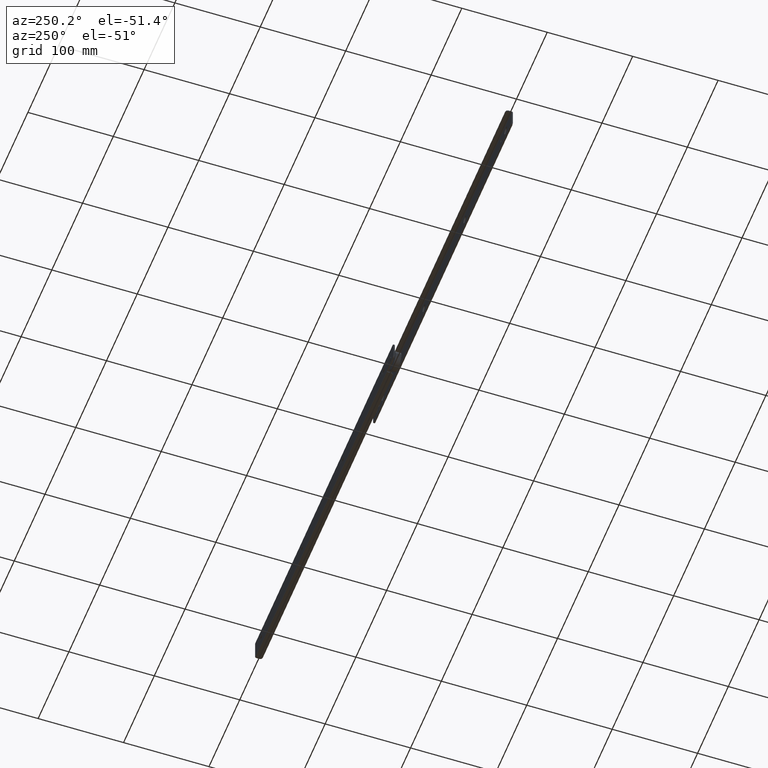
[diagram: clean part render]
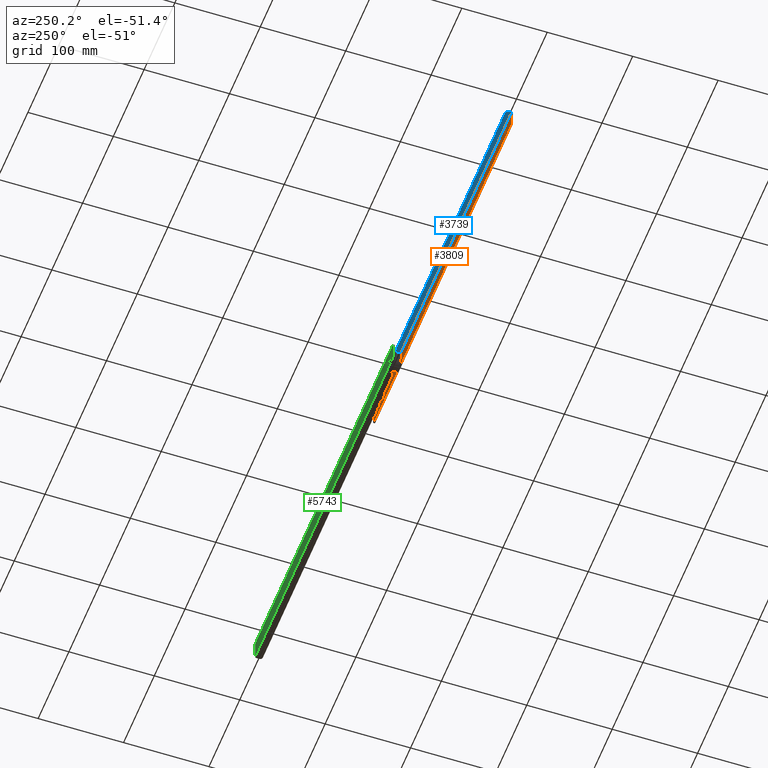
[diagram: same view with three faces highlighted in distinct colors, each labeled with its STEP entity id]
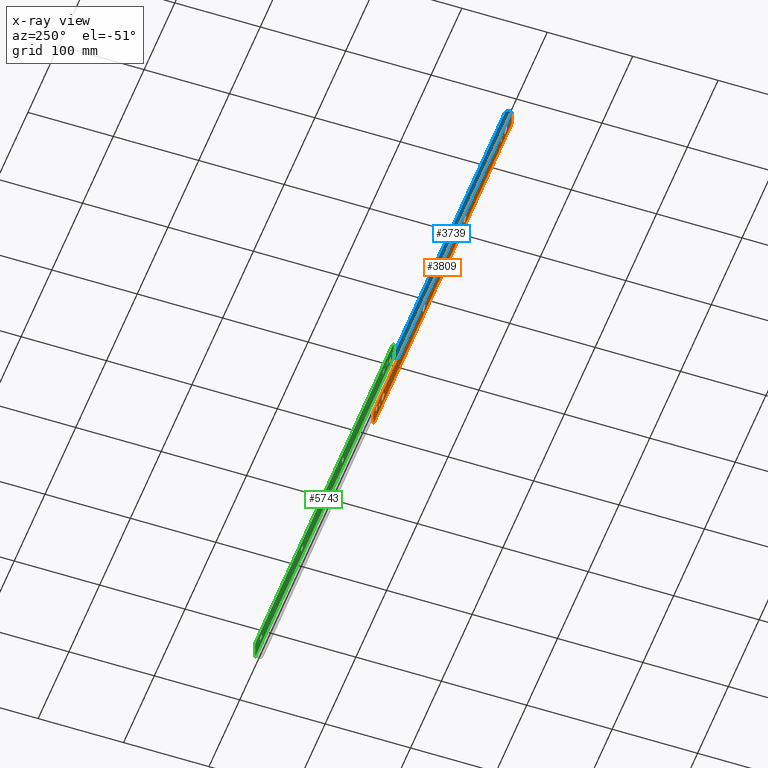
[diagram: x-ray of the same camera — body ghosted, the three highlighted faces saturated]
A machine part, auxiliary view with three faces highlighted in distinct colors.
The next image is the same camera in x-ray (body ghosted, the three faces saturated) — at least one of them is partly hidden behind the body in this view.
Their STEP definitions:

[orange] entity #3809 — the highlighted face is a freeform B-spline surface patch.
#1371=CARTESIAN_POINT('',(81.070621897568884,-10.400000000000000,-7.251799004887795));
#1372=VERTEX_POINT('',#1371);
#1373=CARTESIAN_POINT('',(84.0,-10.400000000000000,-10.549999999999800));
#1374=VERTEX_POINT('',#1373);
#1375=CARTESIAN_POINT('',(81.070621897568884,-10.400000000000002,-7.251799004887796));
#1376=CARTESIAN_POINT('',(81.050000000000011,-10.399999999999999,-7.425288844121709));
#1377=CARTESIAN_POINT('',(81.050000000000011,-10.400000000000000,-7.599999999999800));
#1378=CARTESIAN_POINT('',(81.050000000000011,-10.400000000000000,-10.549999999999802));
#1379=CARTESIAN_POINT('',(84.0,-10.400000000000000,-10.549999999999800));
#1387=(BOUNDED_CURVE()B_SPLINE_CURVE(2,(#1375,#1376,#1377,#1378,#1379),.UNSPECIFIED.,.F.,.U.)B_SPLINE_CURVE_WITH_KNOTS((3,2,3),(0.729562473183962,0.750000000000000,1.0),.UNSPECIFIED.)CURVE()GEOMETRIC_REPRESENTATION_ITEM()RATIONAL_B_SPLINE_CURVE((0.956026753537775,0.976055947945058,1.0,0.707106781186548,1.0))REPRESENTATION_ITEM(''));
#1388=EDGE_CURVE('',#1372,#1374,#1387,.T.);
#1429=CARTESIAN_POINT('',(86.944497645915249,-10.400000000000000,-7.780093345794604));
#1430=VERTEX_POINT('',#1429);
#1436=CARTESIAN_POINT('',(84.0,-10.400000000000000,-10.549999999999800));
#1437=CARTESIAN_POINT('',(86.775082606235145,-10.399999999999999,-10.549999999999800));
#1438=CARTESIAN_POINT('',(86.944497645915249,-10.400000000000000,-7.780093345794604));
#1446=(BOUNDED_CURVE()B_SPLINE_CURVE(2,(#1436,#1437,#1438),.UNSPECIFIED.,.F.,.U.)B_SPLINE_CURVE_WITH_KNOTS((3,3),(0.0,0.239332944173680),.UNSPECIFIED.)CURVE()GEOMETRIC_REPRESENTATION_ITEM()RATIONAL_B_SPLINE_CURVE((1.0,0.719604014451482,0.976072002949423))REPRESENTATION_ITEM(''));
#1447=EDGE_CURVE('',#1374,#1430,#1446,.T.);
#1470=CARTESIAN_POINT('',(84.0,-10.400000000000000,-4.649999999999801));
#1471=VERTEX_POINT('',#1470);
#1472=CARTESIAN_POINT('',(84.0,-10.400000000000000,-4.649999999999801));
#1473=CARTESIAN_POINT('',(81.379885153621856,-10.400000000000000,-4.649999999999800));
#1474=CARTESIAN_POINT('',(81.070621897568884,-10.400000000000002,-7.251799004887795));
#1482=(BOUNDED_CURVE()B_SPLINE_CURVE(2,(#1472,#1473,#1474),.UNSPECIFIED.,.F.,.U.)B_SPLINE_CURVE_WITH_KNOTS((3,3),(0.500000000000000,0.729562473183962),.UNSPECIFIED.)CURVE()GEOMETRIC_REPRESENTATION_ITEM()RATIONAL_B_SPLINE_CURVE((1.0,0.731050833241490,0.956026753537775))REPRESENTATION_ITEM(''));
#1483=EDGE_CURVE('',#1471,#1372,#1482,.T.);
#1485=CARTESIAN_POINT('',(86.944497645915249,-10.399999999999999,-7.780093345794604));
#1486=CARTESIAN_POINT('',(86.949999999999989,-10.400000000000002,-7.690130806329884));
#1487=CARTESIAN_POINT('',(86.950000000000003,-10.400000000000000,-7.599999999999800));
#1488=CARTESIAN_POINT('',(86.950000000000003,-10.400000000000000,-4.649999999999801));
#1489=CARTESIAN_POINT('',(84.0,-10.400000000000000,-4.649999999999801));
#1497=(BOUNDED_CURVE()B_SPLINE_CURVE(2,(#1485,#1486,#1487,#1488,#1489),.UNSPECIFIED.,.F.,.U.)B_SPLINE_CURVE_WITH_KNOTS((3,2,3),(0.239332944173680,0.250000000000000,0.500000000000000),.UNSPECIFIED.)CURVE()GEOMETRIC_REPRESENTATION_ITEM()RATIONAL_B_SPLINE_CURVE((0.976072002949423,0.987502766735065,1.0,0.707106781186548,1.0))REPRESENTATION_ITEM(''));
#1498=EDGE_CURVE('',#1430,#1471,#1497,.T.);
#1553=CARTESIAN_POINT('',(63.0,-10.400000000000000,-7.299999999999800));
#1554=VERTEX_POINT('',#1553);
#1555=CARTESIAN_POINT('',(58.713255462775038,-10.399999992469120,-11.262625837986890));
#1556=VERTEX_POINT('',#1555);
#1557=CARTESIAN_POINT('',(63.0,-10.400000000000000,-7.299999999999800));
#1558=CARTESIAN_POINT('',(59.025120978701047,-10.400000000000000,-7.299999999999800));
#1559=CARTESIAN_POINT('',(58.713255462775038,-10.399999992469120,-11.262625837986889));
#1567=(BOUNDED_CURVE()B_SPLINE_CURVE(2,(#1557,#1558,#1559),.UNSPECIFIED.,.F.,.U.)B_SPLINE_CURVE_WITH_KNOTS((3,3),(0.500000000000000,0.736331296641574),.UNSPECIFIED.)CURVE()GEOMETRIC_REPRESENTATION_ITEM()RATIONAL_B_SPLINE_CURVE((1.0,0.723120663281170,0.969723347842501))REPRESENTATION_ITEM(''));
#1568=EDGE_CURVE('',#1554,#1556,#1567,.T.);
#1570=CARTESIAN_POINT('',(67.286744537224962,-10.399999992469130,-11.937374162012709));
#1571=VERTEX_POINT('',#1570);
#1572=CARTESIAN_POINT('',(67.286744537224962,-10.399999992469121,-11.937374162012709));
#1573=CARTESIAN_POINT('',(67.299999999999997,-10.399999999999999,-11.768947510267459));
#1574=CARTESIAN_POINT('',(67.299999999999997,-10.400000000000000,-11.599999999999801));
#1575=CARTESIAN_POINT('',(67.299999999999997,-10.400000000000000,-7.299999999999800));
#1576=CARTESIAN_POINT('',(63.0,-10.400000000000000,-7.299999999999800));
#1584=(BOUNDED_CURVE()B_SPLINE_CURVE(2,(#1572,#1573,#1574,#1575,#1576),.UNSPECIFIED.,.F.,.U.)B_SPLINE_CURVE_WITH_KNOTS((3,2,3),(0.236331296641574,0.250000000000000,0.500000000000000),.UNSPECIFIED.)CURVE()GEOMETRIC_REPRESENTATION_ITEM()RATIONAL_B_SPLINE_CURVE((0.969723347842500,0.983986117905377,1.0,0.707106781186547,1.0))REPRESENTATION_ITEM(''));
#1585=EDGE_CURVE('',#1571,#1554,#1584,.T.);
#1652=CARTESIAN_POINT('',(63.0,-10.400000000000000,-15.899999999999800));
#1653=VERTEX_POINT('',#1652);
#1654=CARTESIAN_POINT('',(58.713255462775038,-10.399999992469123,-11.262625837986885));
#1655=CARTESIAN_POINT('',(58.700000000000003,-10.399999999999999,-11.431052489732137));
#1656=CARTESIAN_POINT('',(58.700000000000003,-10.400000000000000,-11.599999999999801));
#1657=CARTESIAN_POINT('',(58.700000000000003,-10.400000000000000,-15.899999999999794));
#1658=CARTESIAN_POINT('',(63.0,-10.400000000000000,-15.899999999999800));
#1666=(BOUNDED_CURVE()B_SPLINE_CURVE(2,(#1654,#1655,#1656,#1657,#1658),.UNSPECIFIED.,.F.,.U.)B_SPLINE_CURVE_WITH_KNOTS((3,2,3),(0.736331296641574,0.750000000000000,1.0),.UNSPECIFIED.)CURVE()GEOMETRIC_REPRESENTATION_ITEM()RATIONAL_B_SPLINE_CURVE((0.969723347842500,0.983986117905377,1.0,0.707106781186547,1.0))REPRESENTATION_ITEM(''));
#1667=EDGE_CURVE('',#1556,#1653,#1666,.T.);
#1701=CARTESIAN_POINT('',(63.0,-10.400000000000000,-15.899999999999800));
#1702=CARTESIAN_POINT('',(66.974879021298932,-10.400000000000000,-15.899999999999807));
#1703=CARTESIAN_POINT('',(67.286744537224962,-10.399999992469121,-11.937374162012709));
#1711=(BOUNDED_CURVE()B_SPLINE_CURVE(2,(#1701,#1702,#1703),.UNSPECIFIED.,.F.,.U.)B_SPLINE_CURVE_WITH_KNOTS((3,3),(0.0,0.236331296641574),.UNSPECIFIED.)CURVE()GEOMETRIC_REPRESENTATION_ITEM()RATIONAL_B_SPLINE_CURVE((1.0,0.723120663281170,0.969723347842500))REPRESENTATION_ITEM(''));
#1712=EDGE_CURVE('',#1653,#1571,#1711,.T.);
#1735=CARTESIAN_POINT('',(-70.0,-10.400000000000000,-7.299999999999800));
#1736=VERTEX_POINT('',#1735);
#1737=CARTESIAN_POINT('',(-74.286744537224962,-10.399999992469130,-11.262625837986890));
#1738=VERTEX_POINT('',#1737);
#1739=CARTESIAN_POINT('',(-70.0,-10.400000000000000,-7.299999999999800));
#1740=CARTESIAN_POINT('',(-73.974879021298975,-10.400000000000000,-7.299999999999800));
#1741=CARTESIAN_POINT('',(-74.286744537224962,-10.399999992469130,-11.262625837986889));
#1749=(BOUNDED_CURVE()B_SPLINE_CURVE(2,(#1739,#1740,#1741),.UNSPECIFIED.,.F.,.U.)B_SPLINE_CURVE_WITH_KNOTS((3,3),(0.500000000000000,0.736331296641574),.UNSPECIFIED.)CURVE()GEOMETRIC_REPRESENTATION_ITEM()RATIONAL_B_SPLINE_CURVE((1.0,0.723120663281170,0.969723347842501))REPRESENTATION_ITEM(''));
#1750=EDGE_CURVE('',#1736,#1738,#1749,.T.);
#1752=CARTESIAN_POINT('',(-65.713255462775038,-10.399999992469120,-11.937374162012709));
#1753=VERTEX_POINT('',#1752);
#1754=CARTESIAN_POINT('',(-65.713255462775038,-10.399999992469123,-11.937374162012711));
#1755=CARTESIAN_POINT('',(-65.700000000000003,-10.399999999999999,-11.768947510267461));
#1756=CARTESIAN_POINT('',(-65.700000000000003,-10.400000000000000,-11.599999999999801));
#1757=CARTESIAN_POINT('',(-65.700000000000003,-10.400000000000000,-7.299999999999800));
#1758=CARTESIAN_POINT('',(-70.0,-10.400000000000000,-7.299999999999800));
#1766=(BOUNDED_CURVE()B_SPLINE_CURVE(2,(#1754,#1755,#1756,#1757,#1758),.UNSPECIFIED.,.F.,.U.)B_SPLINE_CURVE_WITH_KNOTS((3,2,3),(0.236331296641574,0.250000000000000,0.500000000000000),.UNSPECIFIED.)CURVE()GEOMETRIC_REPRESENTATION_ITEM()RATIONAL_B_SPLINE_CURVE((0.969723347842500,0.983986117905377,1.0,0.707106781186547,1.0))REPRESENTATION_ITEM(''));
#1767=EDGE_CURVE('',#1753,#1736,#1766,.T.);
#1834=CARTESIAN_POINT('',(-70.0,-10.400000000000000,-15.899999999999800));
#1835=VERTEX_POINT('',#1834);
#1836=CARTESIAN_POINT('',(-74.286744537224962,-10.399999992469123,-11.262625837986885));
#1837=CARTESIAN_POINT('',(-74.300000000000011,-10.399999999999999,-11.431052489732137));
#1838=CARTESIAN_POINT('',(-74.300000000000011,-10.400000000000000,-11.599999999999801));
#1839=CARTESIAN_POINT('',(-74.300000000000011,-10.400000000000000,-15.899999999999794));
#1840=CARTESIAN_POINT('',(-70.0,-10.400000000000000,-15.899999999999800));
#1848=(BOUNDED_CURVE()B_SPLINE_CURVE(2,(#1836,#1837,#1838,#1839,#1840),.UNSPECIFIED.,.F.,.U.)B_SPLINE_CURVE_WITH_KNOTS((3,2,3),(0.736331296641574,0.750000000000000,1.0),.UNSPECIFIED.)CURVE()GEOMETRIC_REPRESENTATION_ITEM()RATIONAL_B_SPLINE_CURVE((0.969723347842500,0.983986117905377,1.0,0.707106781186547,1.0))REPRESENTATION_ITEM(''));
#1849=EDGE_CURVE('',#1738,#1835,#1848,.T.);
#1883=CARTESIAN_POINT('',(-70.0,-10.400000000000000,-15.899999999999800));
#1884=CARTESIAN_POINT('',(-66.025120978701054,-10.400000000000000,-15.899999999999805));
#1885=CARTESIAN_POINT('',(-65.713255462775038,-10.399999992469123,-11.937374162012711));
#1893=(BOUNDED_CURVE()B_SPLINE_CURVE(2,(#1883,#1884,#1885),.UNSPECIFIED.,.F.,.U.)B_SPLINE_CURVE_WITH_KNOTS((3,3),(0.0,0.236331296641574),.UNSPECIFIED.)CURVE()GEOMETRIC_REPRESENTATION_ITEM()RATIONAL_B_SPLINE_CURVE((1.0,0.723120663281171,0.969723347842500))REPRESENTATION_ITEM(''));
#1894=EDGE_CURVE('',#1835,#1753,#1893,.T.);
#1917=CARTESIAN_POINT('',(-203.0,-10.400000000000000,-7.299999999999800));
#1918=VERTEX_POINT('',#1917);
#1919=CARTESIAN_POINT('',(-207.286744537224990,-10.399999992469120,-11.262625837986890));
#1920=VERTEX_POINT('',#1919);
#1921=CARTESIAN_POINT('',(-203.0,-10.400000000000000,-7.299999999999800));
#1922=CARTESIAN_POINT('',(-206.974879021298990,-10.400000000000000,-7.299999999999800));
#1923=CARTESIAN_POINT('',(-207.286744537224990,-10.399999992469120,-11.262625837986889));
#1931=(BOUNDED_CURVE()B_SPLINE_CURVE(2,(#1921,#1922,#1923),.UNSPECIFIED.,.F.,.U.)B_SPLINE_CURVE_WITH_KNOTS((3,3),(0.500000000000000,0.736331296641574),.UNSPECIFIED.)CURVE()GEOMETRIC_REPRESENTATION_ITEM()RATIONAL_B_SPLINE_CURVE((1.0,0.723120663281170,0.969723347842501))REPRESENTATION_ITEM(''));
#1932=EDGE_CURVE('',#1918,#1920,#1931,.T.);
#1934=CARTESIAN_POINT('',(-198.713255462775010,-10.399999992469130,-11.937374162012709));
#1935=VERTEX_POINT('',#1934);
#1936=CARTESIAN_POINT('',(-198.713255462775040,-10.399999992469132,-11.937374162012709));
#1937=CARTESIAN_POINT('',(-198.699999999999990,-10.399999999999999,-11.768947510267459));
#1938=CARTESIAN_POINT('',(-198.699999999999990,-10.400000000000000,-11.599999999999801));
#1939=CARTESIAN_POINT('',(-198.700000000000020,-10.400000000000000,-7.299999999999800));
#1940=CARTESIAN_POINT('',(-203.0,-10.400000000000000,-7.299999999999800));
#1948=(BOUNDED_CURVE()B_SPLINE_CURVE(2,(#1936,#1937,#1938,#1939,#1940),.UNSPECIFIED.,.F.,.U.)B_SPLINE_CURVE_WITH_KNOTS((3,2,3),(0.236331296641574,0.250000000000000,0.500000000000000),.UNSPECIFIED.)CURVE()GEOMETRIC_REPRESENTATION_ITEM()RATIONAL_B_SPLINE_CURVE((0.969723347842500,0.983986117905377,1.0,0.707106781186547,1.0))REPRESENTATION_ITEM(''));
#1949=EDGE_CURVE('',#1935,#1918,#1948,.T.);
#2016=CARTESIAN_POINT('',(-203.0,-10.400000000000000,-15.899999999999800));
#2017=VERTEX_POINT('',#2016);
#2018=CARTESIAN_POINT('',(-207.286744537225080,-10.399999992469118,-11.262625837986889));
#2019=CARTESIAN_POINT('',(-207.300000000000100,-10.400000000000000,-11.431052489732139));
#2020=CARTESIAN_POINT('',(-207.300000000000010,-10.400000000000000,-11.599999999999801));
#2021=CARTESIAN_POINT('',(-207.299999999999980,-10.400000000000000,-15.899999999999794));
#2022=CARTESIAN_POINT('',(-203.0,-10.400000000000000,-15.899999999999800));
#2030=(BOUNDED_CURVE()B_SPLINE_CURVE(2,(#2018,#2019,#2020,#2021,#2022),.UNSPECIFIED.,.F.,.U.)B_SPLINE_CURVE_WITH_KNOTS((3,2,3),(0.736331296641573,0.750000000000000,1.0),.UNSPECIFIED.)CURVE()GEOMETRIC_REPRESENTATION_ITEM()RATIONAL_B_SPLINE_CURVE((0.969723347842499,0.983986117905377,1.0,0.707106781186547,1.0))REPRESENTATION_ITEM(''));
#2031=EDGE_CURVE('',#1920,#2017,#2030,.T.);
#2065=CARTESIAN_POINT('',(-203.0,-10.400000000000000,-15.899999999999800));
#2066=CARTESIAN_POINT('',(-199.025120978701070,-10.400000000000000,-15.899999999999807));
#2067=CARTESIAN_POINT('',(-198.713255462775040,-10.399999992469132,-11.937374162012709));
#2075=(BOUNDED_CURVE()B_SPLINE_CURVE(2,(#2065,#2066,#2067),.UNSPECIFIED.,.F.,.U.)B_SPLINE_CURVE_WITH_KNOTS((3,3),(0.0,0.236331296641574),.UNSPECIFIED.)CURVE()GEOMETRIC_REPRESENTATION_ITEM()RATIONAL_B_SPLINE_CURVE((1.0,0.723120663281170,0.969723347842500))REPRESENTATION_ITEM(''));
#2076=EDGE_CURVE('',#2017,#1935,#2075,.T.);
#2099=CARTESIAN_POINT('',(-336.0,-10.400000000000000,-7.299999999999800));
#2100=VERTEX_POINT('',#2099);
#2101=CARTESIAN_POINT('',(-340.286744537224990,-10.399999992469100,-11.262625837986890));
#2102=VERTEX_POINT('',#2101);
#2103=CARTESIAN_POINT('',(-336.0,-10.400000000000000,-7.299999999999800));
#2104=CARTESIAN_POINT('',(-339.974879021299050,-10.400000000000000,-7.299999999999800));
#2105=CARTESIAN_POINT('',(-340.286744537224990,-10.399999992469100,-11.262625837986889));
#2113=(BOUNDED_CURVE()B_SPLINE_CURVE(2,(#2103,#2104,#2105),.UNSPECIFIED.,.F.,.U.)B_SPLINE_CURVE_WITH_KNOTS((3,3),(0.500000000000000,0.736331296641574),.UNSPECIFIED.)CURVE()GEOMETRIC_REPRESENTATION_ITEM()RATIONAL_B_SPLINE_CURVE((1.0,0.723120663281170,0.969723347842501))REPRESENTATION_ITEM(''));
#2114=EDGE_CURVE('',#2100,#2102,#2113,.T.);
#2116=CARTESIAN_POINT('',(-331.713255462775120,-10.399999992469130,-11.937374162012709));
#2117=VERTEX_POINT('',#2116);
#2118=CARTESIAN_POINT('',(-331.713255462775070,-10.399999992469132,-11.937374162012709));
#2119=CARTESIAN_POINT('',(-331.699999999999930,-10.399999999999999,-11.768947510267459));
#2120=CARTESIAN_POINT('',(-331.699999999999990,-10.400000000000000,-11.599999999999801));
#2121=CARTESIAN_POINT('',(-331.700000000000050,-10.400000000000000,-7.299999999999800));
#2122=CARTESIAN_POINT('',(-336.0,-10.400000000000000,-7.299999999999800));
#2130=(BOUNDED_CURVE()B_SPLINE_CURVE(2,(#2118,#2119,#2120,#2121,#2122),.UNSPECIFIED.,.F.,.U.)B_SPLINE_CURVE_WITH_KNOTS((3,2,3),(0.236331296641574,0.250000000000000,0.500000000000000),.UNSPECIFIED.)CURVE()GEOMETRIC_REPRESENTATION_ITEM()RATIONAL_B_SPLINE_CURVE((0.969723347842500,0.983986117905377,1.0,0.707106781186547,1.0))REPRESENTATION_ITEM(''));
#2131=EDGE_CURVE('',#2117,#2100,#2130,.T.);
#2198=CARTESIAN_POINT('',(-336.0,-10.400000000000000,-15.899999999999800));
#2199=VERTEX_POINT('',#2198);
#2200=CARTESIAN_POINT('',(-340.286744537224990,-10.399999992469100,-11.262625837986890));
#2201=CARTESIAN_POINT('',(-340.300000000000070,-10.400000000000002,-11.431052489732132));
#2202=CARTESIAN_POINT('',(-340.300000000000130,-10.400000000000000,-11.599999999999801));
#2203=CARTESIAN_POINT('',(-340.300000000000180,-10.400000000000000,-15.899999999999794));
#2204=CARTESIAN_POINT('',(-336.0,-10.400000000000000,-15.899999999999800));
#2212=(BOUNDED_CURVE()B_SPLINE_CURVE(2,(#2200,#2201,#2202,#2203,#2204),.UNSPECIFIED.,.F.,.U.)B_SPLINE_CURVE_WITH_KNOTS((3,2,3),(0.736331296641573,0.750000000000000,1.0),.UNSPECIFIED.)CURVE()GEOMETRIC_REPRESENTATION_ITEM()RATIONAL_B_SPLINE_CURVE((0.969723347842499,0.983986117905377,1.0,0.707106781186547,1.0))REPRESENTATION_ITEM(''));
#2213=EDGE_CURVE('',#2102,#2199,#2212,.T.);
#2247=CARTESIAN_POINT('',(-336.0,-10.400000000000000,-15.899999999999800));
#2248=CARTESIAN_POINT('',(-332.025120978701070,-10.400000000000000,-15.899999999999807));
#2249=CARTESIAN_POINT('',(-331.713255462775070,-10.399999992469132,-11.937374162012709));
#2257=(BOUNDED_CURVE()B_SPLINE_CURVE(2,(#2247,#2248,#2249),.UNSPECIFIED.,.F.,.U.)B_SPLINE_CURVE_WITH_KNOTS((3,3),(0.0,0.236331296641574),.UNSPECIFIED.)CURVE()GEOMETRIC_REPRESENTATION_ITEM()RATIONAL_B_SPLINE_CURVE((1.0,0.723120663281170,0.969723347842500))REPRESENTATION_ITEM(''));
#2258=EDGE_CURVE('',#2199,#2117,#2257,.T.);
#2285=CARTESIAN_POINT('',(73.013980951174005,-10.400000000000000,-11.363931497864611));
#2286=VERTEX_POINT('',#2285);
#2287=CARTESIAN_POINT('',(75.0,-10.400000000000000,-13.599999999999801));
#2288=VERTEX_POINT('',#2287);
#2289=CARTESIAN_POINT('',(73.013980951174005,-10.400000000000000,-11.363931497864613));
#2290=CARTESIAN_POINT('',(73.0,-10.399999999999995,-11.481551727527320));
#2291=CARTESIAN_POINT('',(73.0,-10.400000000000000,-11.599999999999801));
#2292=CARTESIAN_POINT('',(72.999999999999986,-10.400000000000000,-13.599999999999799));
#2293=CARTESIAN_POINT('',(75.0,-10.400000000000000,-13.599999999999801));
#2301=(BOUNDED_CURVE()B_SPLINE_CURVE(2,(#2289,#2290,#2291,#2292,#2293),.UNSPECIFIED.,.F.,.U.)B_SPLINE_CURVE_WITH_KNOTS((3,2,3),(0.729562467929627,0.750000000000000,1.0),.UNSPECIFIED.)CURVE()GEOMETRIC_REPRESENTATION_ITEM()RATIONAL_B_SPLINE_CURVE((0.956026743239063,0.976055941789221,1.0,0.707106781186548,1.0))REPRESENTATION_ITEM(''));
#2302=EDGE_CURVE('',#2286,#2288,#2301,.T.);
#2343=CARTESIAN_POINT('',(76.996269595957983,-10.400000000000000,-11.722097093551319));
#2344=VERTEX_POINT('',#2343);
#2350=CARTESIAN_POINT('',(75.0,-10.400000000000000,-13.599999999999801));
#2351=CARTESIAN_POINT('',(76.881412106463230,-10.400000000000000,-13.599999999999797));
#2352=CARTESIAN_POINT('',(76.996269595957983,-10.400000000000002,-11.722097093551325));
#2360=(BOUNDED_CURVE()B_SPLINE_CURVE(2,(#2350,#2351,#2352),.UNSPECIFIED.,.F.,.U.)B_SPLINE_CURVE_WITH_KNOTS((3,3),(0.0,0.239332959738510),.UNSPECIFIED.)CURVE()GEOMETRIC_REPRESENTATION_ITEM()RATIONAL_B_SPLINE_CURVE((1.0,0.719603996216150,0.976072036307813))REPRESENTATION_ITEM(''));
#2361=EDGE_CURVE('',#2288,#2344,#2360,.T.);
#2384=CARTESIAN_POINT('',(75.0,-10.400000000000000,-9.599999999999799));
#2385=VERTEX_POINT('',#2384);
#2386=CARTESIAN_POINT('',(75.0,-10.400000000000000,-9.599999999999799));
#2387=CARTESIAN_POINT('',(73.223651007223751,-10.400000000000000,-9.599999999999799));
#2388=CARTESIAN_POINT('',(73.013980951174005,-10.400000000000000,-11.363931497864609));
#2396=(BOUNDED_CURVE()B_SPLINE_CURVE(2,(#2386,#2387,#2388),.UNSPECIFIED.,.F.,.U.)B_SPLINE_CURVE_WITH_KNOTS((3,3),(0.500000000000000,0.729562467929627),.UNSPECIFIED.)CURVE()GEOMETRIC_REPRESENTATION_ITEM()RATIONAL_B_SPLINE_CURVE((1.0,0.731050839397326,0.956026743239064))REPRESENTATION_ITEM(''));
#2397=EDGE_CURVE('',#2385,#2286,#2396,.T.);
#2399=CARTESIAN_POINT('',(76.996269595957983,-10.400000000000004,-11.722097093551316));
#2400=CARTESIAN_POINT('',(77.0,-10.399999999999997,-11.661105541119388));
#2401=CARTESIAN_POINT('',(77.0,-10.400000000000000,-11.599999999999801));
#2402=CARTESIAN_POINT('',(77.000000000000014,-10.400000000000000,-9.599999999999799));
#2403=CARTESIAN_POINT('',(75.0,-10.400000000000000,-9.599999999999799));
#2411=(BOUNDED_CURVE()B_SPLINE_CURVE(2,(#2399,#2400,#2401,#2402,#2403),.UNSPECIFIED.,.F.,.U.)B_SPLINE_CURVE_WITH_KNOTS((3,2,3),(0.239332959738509,0.250000000000000,0.500000000000000),.UNSPECIFIED.)CURVE()GEOMETRIC_REPRESENTATION_ITEM()RATIONAL_B_SPLINE_CURVE((0.976072036307813,0.987502784970397,1.0,0.707106781186548,1.0))REPRESENTATION_ITEM(''));
#2412=EDGE_CURVE('',#2344,#2385,#2411,.T.);
#2471=CARTESIAN_POINT('',(-322.986019048825880,-10.400000000000000,-11.363931497864611));
#2472=VERTEX_POINT('',#2471);
#2473=CARTESIAN_POINT('',(-321.0,-10.400000000000000,-13.599999999999801));
#2474=VERTEX_POINT('',#2473);
#2475=CARTESIAN_POINT('',(-322.986019048825940,-10.400000000000000,-11.363931497864607));
#2476=CARTESIAN_POINT('',(-323.000000000000060,-10.399999999999999,-11.481551727527322));
#2477=CARTESIAN_POINT('',(-323.0,-10.400000000000000,-11.599999999999801));
#2478=CARTESIAN_POINT('',(-323.000000000000060,-10.400000000000000,-13.599999999999799));
#2479=CARTESIAN_POINT('',(-321.0,-10.400000000000000,-13.599999999999801));
#2487=(BOUNDED_CURVE()B_SPLINE_CURVE(2,(#2475,#2476,#2477,#2478,#2479),.UNSPECIFIED.,.F.,.U.)B_SPLINE_CURVE_WITH_KNOTS((3,2,3),(0.729562467929626,0.750000000000000,1.0),.UNSPECIFIED.)CURVE()GEOMETRIC_REPRESENTATION_ITEM()RATIONAL_B_SPLINE_CURVE((0.956026743239062,0.976055941789220,1.0,0.707106781186548,1.0))REPRESENTATION_ITEM(''));
#2488=EDGE_CURVE('',#2472,#2474,#2487,.T.);
#2529=CARTESIAN_POINT('',(-319.003730404042020,-10.400000000000000,-11.722097093551319));
#2530=VERTEX_POINT('',#2529);
#2536=CARTESIAN_POINT('',(-321.0,-10.400000000000000,-13.599999999999801));
#2537=CARTESIAN_POINT('',(-319.118587893536760,-10.400000000000000,-13.599999999999801));
#2538=CARTESIAN_POINT('',(-319.003730404042020,-10.400000000000004,-11.722097093551316));
#2546=(BOUNDED_CURVE()B_SPLINE_CURVE(2,(#2536,#2537,#2538),.UNSPECIFIED.,.F.,.U.)B_SPLINE_CURVE_WITH_KNOTS((3,3),(0.0,0.239332959738509),.UNSPECIFIED.)CURVE()GEOMETRIC_REPRESENTATION_ITEM()RATIONAL_B_SPLINE_CURVE((1.0,0.719603996216150,0.976072036307813))REPRESENTATION_ITEM(''));
#2547=EDGE_CURVE('',#2474,#2530,#2546,.T.);
#2570=CARTESIAN_POINT('',(-321.0,-10.400000000000000,-9.599999999999799));
#2571=VERTEX_POINT('',#2570);
#2572=CARTESIAN_POINT('',(-321.0,-10.400000000000000,-9.599999999999799));
#2573=CARTESIAN_POINT('',(-322.776348992776210,-10.400000000000000,-9.599999999999799));
#2574=CARTESIAN_POINT('',(-322.986019048825880,-10.400000000000000,-11.363931497864609));
#2582=(BOUNDED_CURVE()B_SPLINE_CURVE(2,(#2572,#2573,#2574),.UNSPECIFIED.,.F.,.U.)B_SPLINE_CURVE_WITH_KNOTS((3,3),(0.500000000000000,0.729562467929627),.UNSPECIFIED.)CURVE()GEOMETRIC_REPRESENTATION_ITEM()RATIONAL_B_SPLINE_CURVE((1.0,0.731050839397326,0.956026743239064))REPRESENTATION_ITEM(''));
#2583=EDGE_CURVE('',#2571,#2472,#2582,.T.);
#2585=CARTESIAN_POINT('',(-319.003730404042020,-10.399999999999997,-11.722097093551321));
#2586=CARTESIAN_POINT('',(-319.0,-10.399999999999999,-11.661105541119392));
#2587=CARTESIAN_POINT('',(-319.0,-10.400000000000000,-11.599999999999801));
#2588=CARTESIAN_POINT('',(-319.0,-10.400000000000000,-9.599999999999799));
#2589=CARTESIAN_POINT('',(-321.0,-10.400000000000000,-9.599999999999799));
#2597=(BOUNDED_CURVE()B_SPLINE_CURVE(2,(#2585,#2586,#2587,#2588,#2589),.UNSPECIFIED.,.F.,.U.)B_SPLINE_CURVE_WITH_KNOTS((3,2,3),(0.239332959738509,0.250000000000000,0.500000000000000),.UNSPECIFIED.)CURVE()GEOMETRIC_REPRESENTATION_ITEM()RATIONAL_B_SPLINE_CURVE((0.976072036307813,0.987502784970397,1.0,0.707106781186548,1.0))REPRESENTATION_ITEM(''));
#2598=EDGE_CURVE('',#2530,#2571,#2597,.T.);
#3052=CARTESIAN_POINT('',(28.0,-10.400000000000000,-1.999999999999800));
#3053=VERTEX_POINT('',#3052);
#3054=CARTESIAN_POINT('',(14.0,-10.400000000000000,-1.999999999999800));
#3055=VERTEX_POINT('',#3054);
#3056=CARTESIAN_POINT('',(28.0,-10.400000000000000,-1.999999999999800));
#3057=CARTESIAN_POINT('',(14.0,-10.400000000000000,-1.999999999999800));
#3058=QUASI_UNIFORM_CURVE('',1,(#3056,#3057),.UNSPECIFIED.,.F.,.U.);
#3059=EDGE_CURVE('',#3053,#3055,#3058,.T.);
#3114=CARTESIAN_POINT('',(92.0,-10.400000000000000,-21.600000000000001));
#3115=VERTEX_POINT('',#3114);
#3121=CARTESIAN_POINT('',(95.0,-10.400000000000000,-18.600000000000001));
#3122=VERTEX_POINT('',#3121);
#3123=CARTESIAN_POINT('',(95.0,-10.400000000000000,-18.600000000000001));
#3124=CARTESIAN_POINT('',(95.000000000000014,-10.400000000000000,-21.600000000000005));
#3125=CARTESIAN_POINT('',(92.0,-10.400000000000000,-21.600000000000001));
#3133=(BOUNDED_CURVE()B_SPLINE_CURVE(2,(#3123,#3124,#3125),.UNSPECIFIED.,.F.,.U.)CURVE()GEOMETRIC_REPRESENTATION_ITEM()QUASI_UNIFORM_CURVE()RATIONAL_B_SPLINE_CURVE((1.0,0.707106781186548,1.0))REPRESENTATION_ITEM(''));
#3134=EDGE_CURVE('',#3122,#3115,#3133,.T.);
#3158=CARTESIAN_POINT('',(92.0,-10.400000000000000,-1.599999999999795));
#3159=VERTEX_POINT('',#3158);
#3160=CARTESIAN_POINT('',(95.0,-10.400000000000000,-4.599999999999800));
#3161=VERTEX_POINT('',#3160);
#3162=CARTESIAN_POINT('',(92.0,-10.400000000000000,-1.599999999999800));
#3163=CARTESIAN_POINT('',(95.000000000000014,-10.400000000000000,-1.599999999999799));
#3164=CARTESIAN_POINT('',(95.0,-10.400000000000000,-4.599999999999800));
#3172=(BOUNDED_CURVE()B_SPLINE_CURVE(2,(#3162,#3163,#3164),.UNSPECIFIED.,.F.,.U.)CURVE()GEOMETRIC_REPRESENTATION_ITEM()QUASI_UNIFORM_CURVE()RATIONAL_B_SPLINE_CURVE((1.0,0.707106781186548,1.0))REPRESENTATION_ITEM(''));
#3173=EDGE_CURVE('',#3159,#3161,#3172,.T.);
#3358=CARTESIAN_POINT('',(-355.0,-10.400000000000000,-18.600000000000001));
#3359=VERTEX_POINT('',#3358);
#3365=CARTESIAN_POINT('',(-352.0,-10.400000000000000,-21.600000000000001));
#3366=VERTEX_POINT('',#3365);
#3367=CARTESIAN_POINT('',(-352.0,-10.400000000000000,-21.600000000000001));
#3368=CARTESIAN_POINT('',(-355.000000000000060,-10.400000000000000,-21.600000000000005));
#3369=CARTESIAN_POINT('',(-355.0,-10.400000000000000,-18.600000000000001));
#3377=(BOUNDED_CURVE()B_SPLINE_CURVE(2,(#3367,#3368,#3369),.UNSPECIFIED.,.F.,.U.)CURVE()GEOMETRIC_REPRESENTATION_ITEM()QUASI_UNIFORM_CURVE()RATIONAL_B_SPLINE_CURVE((1.0,0.707106781186548,1.0))REPRESENTATION_ITEM(''));
#3378=EDGE_CURVE('',#3366,#3359,#3377,.T.);
#3401=CARTESIAN_POINT('',(73.0,-10.400000000000000,-1.599999999999795));
#3402=VERTEX_POINT('',#3401);
#3403=CARTESIAN_POINT('',(92.0,-10.400000000000000,-1.599999999999795));
#3404=CARTESIAN_POINT('',(73.0,-10.400000000000000,-1.599999999999795));
#3405=QUASI_UNIFORM_CURVE('',1,(#3403,#3404),.UNSPECIFIED.,.F.,.U.);
#3406=EDGE_CURVE('',#3159,#3402,#3405,.T.);
#3456=CARTESIAN_POINT('',(-355.0,-10.400000000000000,-1.599999999999795));
#3457=VERTEX_POINT('',#3456);
#3458=CARTESIAN_POINT('',(-355.0,-10.400000000000000,-18.600000000000001));
#3459=CARTESIAN_POINT('',(-355.0,-10.400000000000000,-1.599999999999795));
#3460=QUASI_UNIFORM_CURVE('',1,(#3458,#3459),.UNSPECIFIED.,.F.,.U.);
#3461=EDGE_CURVE('',#3359,#3457,#3460,.T.);
#3505=CARTESIAN_POINT('',(95.0,-10.400000000000000,-18.600000000000001));
#3506=CARTESIAN_POINT('',(95.0,-10.400000000000000,-4.599999999999800));
#3507=QUASI_UNIFORM_CURVE('',1,(#3505,#3506),.UNSPECIFIED.,.F.,.U.);
#3508=EDGE_CURVE('',#3122,#3161,#3507,.T.);
#3525=CARTESIAN_POINT('',(92.0,-10.400000000000000,-21.600000000000001));
#3526=CARTESIAN_POINT('',(-352.0,-10.400000000000000,-21.600000000000001));
#3527=QUASI_UNIFORM_CURVE('',1,(#3525,#3526),.UNSPECIFIED.,.F.,.U.);
#3528=EDGE_CURVE('',#3115,#3366,#3527,.T.);
#3701=CARTESIAN_POINT('',(28.0,-10.400000000000000,-1.599999999999795));
#3702=VERTEX_POINT('',#3701);
#3703=CARTESIAN_POINT('',(73.0,-10.400000000000000,-1.599999999999795));
#3704=CARTESIAN_POINT('',(28.0,-10.400000000000000,-1.599999999999795));
#3705=QUASI_UNIFORM_CURVE('',1,(#3703,#3704),.UNSPECIFIED.,.F.,.U.);
#3706=EDGE_CURVE('',#3402,#3702,#3705,.T.);
#3721=CARTESIAN_POINT('',(14.0,-10.400000000000000,-1.599999999999795));
#3722=VERTEX_POINT('',#3721);
#3728=CARTESIAN_POINT('',(14.0,-10.400000000000000,-1.599999999999795));
#3729=CARTESIAN_POINT('',(-355.0,-10.400000000000000,-1.599999999999795));
#3730=QUASI_UNIFORM_CURVE('',1,(#3728,#3729),.UNSPECIFIED.,.F.,.U.);
#3731=EDGE_CURVE('',#3722,#3457,#3730,.T.);
#3740=CARTESIAN_POINT('',(-377.477499127812680,-10.400000000000000,-0.601000038763665));
#3741=CARTESIAN_POINT('',(-377.477499127812680,-10.400000000000000,-22.599000497677942));
#3742=CARTESIAN_POINT('',(117.477511197753200,-10.400000000000000,-0.601000038763665));
#3743=CARTESIAN_POINT('',(117.477511197753200,-10.400000000000000,-22.599000497677942));
#3744=B_SPLINE_SURFACE_WITH_KNOTS('',1,1,((#3740,#3742),(#3741,#3743)),.UNSPECIFIED.,.F.,.F.,.U.,(2,2),(2,2),(0.0,21.998000458914269),(0.0,494.955010325565920),.UNSPECIFIED.);
#3745=CARTESIAN_POINT('',(14.0,-10.400000000000000,-1.999999999999800));
#3746=CARTESIAN_POINT('',(14.0,-10.400000000000000,-1.599999999999795));
#3747=QUASI_UNIFORM_CURVE('',1,(#3745,#3746),.UNSPECIFIED.,.F.,.U.);
#3748=EDGE_CURVE('',#3055,#3722,#3747,.T.);
#3749=ORIENTED_EDGE('',*,*,#3748,.F.);
#3750=ORIENTED_EDGE('',*,*,#3059,.F.);
#3751=CARTESIAN_POINT('',(28.0,-10.400000000000000,-1.599999999999795));
#3752=CARTESIAN_POINT('',(28.0,-10.400000000000000,-1.999999999999800));
#3753=QUASI_UNIFORM_CURVE('',1,(#3751,#3752),.UNSPECIFIED.,.F.,.U.);
#3754=EDGE_CURVE('',#3702,#3053,#3753,.T.);
#3755=ORIENTED_EDGE('',*,*,#3754,.F.);
#3756=ORIENTED_EDGE('',*,*,#3706,.F.);
#3757=ORIENTED_EDGE('',*,*,#3406,.F.);
#3758=ORIENTED_EDGE('',*,*,#3173,.T.);
#3759=ORIENTED_EDGE('',*,*,#3508,.F.);
#3760=ORIENTED_EDGE('',*,*,#3134,.T.);
#3761=ORIENTED_EDGE('',*,*,#3528,.T.);
#3762=ORIENTED_EDGE('',*,*,#3378,.T.);
#3763=ORIENTED_EDGE('',*,*,#3461,.T.);
#3764=ORIENTED_EDGE('',*,*,#3731,.F.);
#3765=EDGE_LOOP('',(#3749,#3750,#3755,#3756,#3757,#3758,#3759,#3760,#3761,#3762,#3763,#3764));
#3766=FACE_OUTER_BOUND('',#3765,.T.);
#3767=ORIENTED_EDGE('',*,*,#2547,.T.);
#3768=ORIENTED_EDGE('',*,*,#2598,.T.);
#3769=ORIENTED_EDGE('',*,*,#2583,.T.);
#3770=ORIENTED_EDGE('',*,*,#2488,.T.);
#3771=EDGE_LOOP('',(#3767,#3768,#3769,#3770));
#3772=FACE_BOUND('',#3771,.T.);
#3773=ORIENTED_EDGE('',*,*,#2361,.T.);
#3774=ORIENTED_EDGE('',*,*,#2412,.T.);
#3775=ORIENTED_EDGE('',*,*,#2397,.T.);
#3776=ORIENTED_EDGE('',*,*,#2302,.T.);
#3777=EDGE_LOOP('',(#3773,#3774,#3775,#3776));
#3778=FACE_BOUND('',#3777,.T.);
#3779=ORIENTED_EDGE('',*,*,#2258,.T.);
#3780=ORIENTED_EDGE('',*,*,#2131,.T.);
#3781=ORIENTED_EDGE('',*,*,#2114,.T.);
#3782=ORIENTED_EDGE('',*,*,#2213,.T.);
#3783=EDGE_LOOP('',(#3779,#3780,#3781,#3782));
#3784=FACE_BOUND('',#3783,.T.);
#3785=ORIENTED_EDGE('',*,*,#2076,.T.);
#3786=ORIENTED_EDGE('',*,*,#1949,.T.);
#3787=ORIENTED_EDGE('',*,*,#1932,.T.);
#3788=ORIENTED_EDGE('',*,*,#2031,.T.);
#3789=EDGE_LOOP('',(#3785,#3786,#3787,#3788));
#3790=FACE_BOUND('',#3789,.T.);
#3791=ORIENTED_EDGE('',*,*,#1894,.T.);
#3792=ORIENTED_EDGE('',*,*,#1767,.T.);
#3793=ORIENTED_EDGE('',*,*,#1750,.T.);
#3794=ORIENTED_EDGE('',*,*,#1849,.T.);
#3795=EDGE_LOOP('',(#3791,#3792,#3793,#3794));
#3796=FACE_BOUND('',#3795,.T.);
#3797=ORIENTED_EDGE('',*,*,#1712,.T.);
#3798=ORIENTED_EDGE('',*,*,#1585,.T.);
#3799=ORIENTED_EDGE('',*,*,#1568,.T.);
#3800=ORIENTED_EDGE('',*,*,#1667,.T.);
#3801=EDGE_LOOP('',(#3797,#3798,#3799,#3800));
#3802=FACE_BOUND('',#3801,.T.);
#3803=ORIENTED_EDGE('',*,*,#1447,.T.);
#3804=ORIENTED_EDGE('',*,*,#1498,.T.);
#3805=ORIENTED_EDGE('',*,*,#1483,.T.);
#3806=ORIENTED_EDGE('',*,*,#1388,.T.);
#3807=EDGE_LOOP('',(#3803,#3804,#3805,#3806));
#3808=FACE_BOUND('',#3807,.T.);
#3809=ADVANCED_FACE('',(#3766,#3772,#3778,#3784,#3790,#3796,#3802,#3808),#3744,.F.);

[blue] entity #3739 — the highlighted face is a freeform B-spline surface patch.
#2950=CARTESIAN_POINT('',(14.0,-10.0,-1.599999999999795));
#2951=VERTEX_POINT('',#2950);
#3008=CARTESIAN_POINT('',(14.0,-4.0,-1.599999999999795));
#3009=VERTEX_POINT('',#3008);
#3017=CARTESIAN_POINT('',(14.0,-4.0,-1.599999999999795));
#3018=CARTESIAN_POINT('',(14.0,-10.0,-1.599999999999795));
#3019=QUASI_UNIFORM_CURVE('',1,(#3017,#3018),.UNSPECIFIED.,.F.,.U.);
#3020=EDGE_CURVE('',#3009,#2951,#3019,.T.);
#3280=CARTESIAN_POINT('',(-355.0,-7.0,-1.599999999999795));
#3281=VERTEX_POINT('',#3280);
#3282=CARTESIAN_POINT('',(-352.0,-4.0,-1.599999999999795));
#3283=VERTEX_POINT('',#3282);
#3284=CARTESIAN_POINT('',(-355.0,-7.0,-1.599999999999795));
#3285=CARTESIAN_POINT('',(-355.000000000000060,-4.000000000000000,-1.599999999999795));
#3286=CARTESIAN_POINT('',(-352.0,-4.0,-1.599999999999795));
#3294=(BOUNDED_CURVE()B_SPLINE_CURVE(2,(#3284,#3285,#3286),.UNSPECIFIED.,.F.,.U.)CURVE()GEOMETRIC_REPRESENTATION_ITEM()QUASI_UNIFORM_CURVE()RATIONAL_B_SPLINE_CURVE((1.0,0.707106781186548,1.0))REPRESENTATION_ITEM(''));
#3295=EDGE_CURVE('',#3281,#3283,#3294,.T.);
#3456=CARTESIAN_POINT('',(-355.0,-10.400000000000000,-1.599999999999795));
#3457=VERTEX_POINT('',#3456);
#3492=CARTESIAN_POINT('',(-355.0,-10.400000000000000,-1.599999999999795));
#3493=CARTESIAN_POINT('',(-355.0,-7.0,-1.599999999999795));
#3494=QUASI_UNIFORM_CURVE('',1,(#3492,#3493),.UNSPECIFIED.,.F.,.U.);
#3495=EDGE_CURVE('',#3457,#3281,#3494,.T.);
#3679=CARTESIAN_POINT('',(14.0,-4.0,-1.599999999999795));
#3680=CARTESIAN_POINT('',(-352.0,-4.0,-1.599999999999795));
#3681=QUASI_UNIFORM_CURVE('',1,(#3679,#3680),.UNSPECIFIED.,.F.,.U.);
#3682=EDGE_CURVE('',#3009,#3283,#3681,.T.);
#3716=CARTESIAN_POINT('',(-373.431549284806410,-3.680320035269737,-1.599999999999795));
#3717=CARTESIAN_POINT('',(-373.431549284806410,-10.719679678627971,-1.599999999999795));
#3718=CARTESIAN_POINT('',(32.431559182157670,-3.680320035269737,-1.599999999999795));
#3719=CARTESIAN_POINT('',(32.431559182157670,-10.719679678627971,-1.599999999999795));
#3720=B_SPLINE_SURFACE_WITH_KNOTS('',1,1,((#3716,#3718),(#3717,#3719)),.UNSPECIFIED.,.F.,.F.,.U.,(2,2),(2,2),(0.0,7.039359643358234),(0.0,405.863108466964090),.UNSPECIFIED.);
#3721=CARTESIAN_POINT('',(14.0,-10.400000000000000,-1.599999999999795));
#3722=VERTEX_POINT('',#3721);
#3723=CARTESIAN_POINT('',(14.0,-10.400000000000000,-1.599999999999795));
#3724=CARTESIAN_POINT('',(14.0,-10.0,-1.599999999999795));
#3725=QUASI_UNIFORM_CURVE('',1,(#3723,#3724),.UNSPECIFIED.,.F.,.U.);
#3726=EDGE_CURVE('',#3722,#2951,#3725,.T.);
#3727=ORIENTED_EDGE('',*,*,#3726,.F.);
#3728=CARTESIAN_POINT('',(14.0,-10.400000000000000,-1.599999999999795));
#3729=CARTESIAN_POINT('',(-355.0,-10.400000000000000,-1.599999999999795));
#3730=QUASI_UNIFORM_CURVE('',1,(#3728,#3729),.UNSPECIFIED.,.F.,.U.);
#3731=EDGE_CURVE('',#3722,#3457,#3730,.T.);
#3732=ORIENTED_EDGE('',*,*,#3731,.T.);
#3733=ORIENTED_EDGE('',*,*,#3495,.T.);
#3734=ORIENTED_EDGE('',*,*,#3295,.T.);
#3735=ORIENTED_EDGE('',*,*,#3682,.F.);
#3736=ORIENTED_EDGE('',*,*,#3020,.T.);
#3737=EDGE_LOOP('',(#3727,#3732,#3733,#3734,#3735,#3736));
#3738=FACE_OUTER_BOUND('',#3737,.T.);
#3739=ADVANCED_FACE('',(#3738),#3720,.F.);

[green] entity #5743 — the highlighted face is a freeform B-spline surface patch.
#3969=CARTESIAN_POINT('',(29.023201358516079,-2.068594E-011,-7.472384006316699));
#3970=VERTEX_POINT('',#3969);
#3971=CARTESIAN_POINT('',(32.0,0.0,-10.099999999999801));
#3972=VERTEX_POINT('',#3971);
#3973=CARTESIAN_POINT('',(29.023201358516086,-2.068594E-011,-7.472384006316699));
#3974=CARTESIAN_POINT('',(29.351904199684370,0.0,-10.099999999999801));
#3975=CARTESIAN_POINT('',(32.0,0.0,-10.099999999999801));
#3983=(BOUNDED_CURVE()B_SPLINE_CURVE(2,(#3973,#3974,#3975),.UNSPECIFIED.,.F.,.U.)B_SPLINE_CURVE_WITH_KNOTS((3,3),(0.271473928979236,0.500000000000000),.UNSPECIFIED.)CURVE()GEOMETRIC_REPRESENTATION_ITEM()RATIONAL_B_SPLINE_CURVE((0.954005430258157,0.732265053903747,1.0))REPRESENTATION_ITEM(''));
#3984=EDGE_CURVE('',#3970,#3972,#3983,.T.);
#4025=CARTESIAN_POINT('',(34.999885771352197,-2.860807E-009,-7.073820374615067));
#4026=VERTEX_POINT('',#4025);
#4032=CARTESIAN_POINT('',(32.0,0.0,-10.099999999999801));
#4033=CARTESIAN_POINT('',(34.999999999999993,0.0,-10.099999999999801));
#4034=CARTESIAN_POINT('',(35.0,0.0,-7.099999999999799));
#4035=CARTESIAN_POINT('',(34.999999999999993,0.0,-7.086909928667300));
#4036=CARTESIAN_POINT('',(34.999885771352190,-2.860807E-009,-7.073820374615067));
#4044=(BOUNDED_CURVE()B_SPLINE_CURVE(2,(#4032,#4033,#4034,#4035,#4036),.UNSPECIFIED.,.F.,.U.)B_SPLINE_CURVE_WITH_KNOTS((3,2,3),(0.500000000000000,0.750000000000000,0.751539896550868),.UNSPECIFIED.)CURVE()GEOMETRIC_REPRESENTATION_ITEM()RATIONAL_B_SPLINE_CURVE((1.0,0.707106781186548,1.0,0.998195898970307,0.996414022972238))REPRESENTATION_ITEM(''));
#4045=EDGE_CURVE('',#3972,#4026,#4044,.T.);
#4072=CARTESIAN_POINT('',(32.0,0.0,-4.099999999999799));
#4073=VERTEX_POINT('',#4072);
#4074=CARTESIAN_POINT('',(32.0,0.0,-4.099999999999799));
#4075=CARTESIAN_POINT('',(29.0,0.0,-4.099999999999799));
#4076=CARTESIAN_POINT('',(29.0,0.0,-7.099999999999799));
#4077=CARTESIAN_POINT('',(28.999999999999993,0.0,-7.286914782676485));
#4078=CARTESIAN_POINT('',(29.023201358516086,-2.068594E-011,-7.472384006316699));
#4086=(BOUNDED_CURVE()B_SPLINE_CURVE(2,(#4074,#4075,#4076,#4077,#4078),.UNSPECIFIED.,.F.,.U.)B_SPLINE_CURVE_WITH_KNOTS((3,2,3),(0.0,0.250000000000000,0.271473928979236),.UNSPECIFIED.)CURVE()GEOMETRIC_REPRESENTATION_ITEM()RATIONAL_B_SPLINE_CURVE((1.0,0.707106781186548,1.0,0.974841727282801,0.954005430258157))REPRESENTATION_ITEM(''));
#4087=EDGE_CURVE('',#4073,#3970,#4086,.T.);
#4089=CARTESIAN_POINT('',(34.999885771352197,-2.860807E-009,-7.073820374615067));
#4090=CARTESIAN_POINT('',(34.973933594371339,0.0,-4.099999999999800));
#4091=CARTESIAN_POINT('',(32.0,0.0,-4.099999999999799));
#4099=(BOUNDED_CURVE()B_SPLINE_CURVE(2,(#4089,#4090,#4091),.UNSPECIFIED.,.F.,.U.)B_SPLINE_CURVE_WITH_KNOTS((3,3),(0.751539896550869,1.0),.UNSPECIFIED.)CURVE()GEOMETRIC_REPRESENTATION_ITEM()RATIONAL_B_SPLINE_CURVE((0.996414022972236,0.708910882216242,1.0))REPRESENTATION_ITEM(''));
#4100=EDGE_CURVE('',#4026,#4073,#4099,.T.);
#4155=CARTESIAN_POINT('',(162.023201358516100,-2.068435E-011,-7.472384006316901));
#4156=VERTEX_POINT('',#4155);
#4157=CARTESIAN_POINT('',(165.0,0.0,-10.100000000000000));
#4158=VERTEX_POINT('',#4157);
#4159=CARTESIAN_POINT('',(162.023201358516050,-2.068435E-011,-7.472384006316901));
#4160=CARTESIAN_POINT('',(162.351904199684380,0.0,-10.100000000000001));
#4161=CARTESIAN_POINT('',(165.0,0.0,-10.100000000000000));
#4169=(BOUNDED_CURVE()B_SPLINE_CURVE(2,(#4159,#4160,#4161),.UNSPECIFIED.,.F.,.U.)B_SPLINE_CURVE_WITH_KNOTS((3,3),(0.271473928979236,0.500000000000000),.UNSPECIFIED.)CURVE()GEOMETRIC_REPRESENTATION_ITEM()RATIONAL_B_SPLINE_CURVE((0.954005430258157,0.732265053903747,1.0))REPRESENTATION_ITEM(''));
#4170=EDGE_CURVE('',#4156,#4158,#4169,.T.);
#4211=CARTESIAN_POINT('',(167.999885771352210,-2.860807E-009,-7.073820374615270));
#4212=VERTEX_POINT('',#4211);
#4218=CARTESIAN_POINT('',(165.0,0.0,-10.100000000000000));
#4219=CARTESIAN_POINT('',(168.000000000000030,0.0,-10.100000000000001));
#4220=CARTESIAN_POINT('',(168.0,0.0,-7.100000000000001));
#4221=CARTESIAN_POINT('',(167.999999999999970,0.0,-7.086909928667501));
#4222=CARTESIAN_POINT('',(167.999885771352240,-2.860807E-009,-7.073820374615271));
#4230=(BOUNDED_CURVE()B_SPLINE_CURVE(2,(#4218,#4219,#4220,#4221,#4222),.UNSPECIFIED.,.F.,.U.)B_SPLINE_CURVE_WITH_KNOTS((3,2,3),(0.500000000000000,0.750000000000000,0.751539896550868),.UNSPECIFIED.)CURVE()GEOMETRIC_REPRESENTATION_ITEM()RATIONAL_B_SPLINE_CURVE((1.0,0.707106781186548,1.0,0.998195898970307,0.996414022972238))REPRESENTATION_ITEM(''));
#4231=EDGE_CURVE('',#4158,#4212,#4230,.T.);
#4258=CARTESIAN_POINT('',(165.0,0.0,-4.100000000000001));
#4259=VERTEX_POINT('',#4258);
#4260=CARTESIAN_POINT('',(165.0,0.0,-4.100000000000001));
#4261=CARTESIAN_POINT('',(162.0,0.0,-4.100000000000000));
#4262=CARTESIAN_POINT('',(162.0,0.0,-7.100000000000001));
#4263=CARTESIAN_POINT('',(162.000000000000030,0.0,-7.286914782676686));
#4264=CARTESIAN_POINT('',(162.023201358516050,-2.068435E-011,-7.472384006316901));
#4272=(BOUNDED_CURVE()B_SPLINE_CURVE(2,(#4260,#4261,#4262,#4263,#4264),.UNSPECIFIED.,.F.,.U.)B_SPLINE_CURVE_WITH_KNOTS((3,2,3),(0.0,0.250000000000000,0.271473928979236),.UNSPECIFIED.)CURVE()GEOMETRIC_REPRESENTATION_ITEM()RATIONAL_B_SPLINE_CURVE((1.0,0.707106781186548,1.0,0.974841727282801,0.954005430258157))REPRESENTATION_ITEM(''));
#4273=EDGE_CURVE('',#4259,#4156,#4272,.T.);
#4275=CARTESIAN_POINT('',(167.999885771352270,-2.860807E-009,-7.073820374615270));
#4276=CARTESIAN_POINT('',(167.973933594371320,0.0,-4.100000000000001));
#4277=CARTESIAN_POINT('',(165.0,0.0,-4.100000000000001));
#4285=(BOUNDED_CURVE()B_SPLINE_CURVE(2,(#4275,#4276,#4277),.UNSPECIFIED.,.F.,.U.)B_SPLINE_CURVE_WITH_KNOTS((3,3),(0.751539896550868,1.0),.UNSPECIFIED.)CURVE()GEOMETRIC_REPRESENTATION_ITEM()RATIONAL_B_SPLINE_CURVE((0.996414022972236,0.708910882216242,1.0))REPRESENTATION_ITEM(''));
#4286=EDGE_CURVE('',#4212,#4259,#4285,.T.);
#4341=CARTESIAN_POINT('',(295.023201358516080,-2.068855E-011,-7.472384006316902));
#4342=VERTEX_POINT('',#4341);
#4343=CARTESIAN_POINT('',(298.0,0.0,-10.100000000000000));
#4344=VERTEX_POINT('',#4343);
#4345=CARTESIAN_POINT('',(295.023201358516080,-2.068855E-011,-7.472384006316902));
#4346=CARTESIAN_POINT('',(295.351904199684330,0.0,-10.100000000000003));
#4347=CARTESIAN_POINT('',(298.0,0.0,-10.100000000000000));
#4355=(BOUNDED_CURVE()B_SPLINE_CURVE(2,(#4345,#4346,#4347),.UNSPECIFIED.,.F.,.U.)B_SPLINE_CURVE_WITH_KNOTS((3,3),(0.271473928979236,0.500000000000000),.UNSPECIFIED.)CURVE()GEOMETRIC_REPRESENTATION_ITEM()RATIONAL_B_SPLINE_CURVE((0.954005430258157,0.732265053903747,1.0))REPRESENTATION_ITEM(''));
#4356=EDGE_CURVE('',#4342,#4344,#4355,.T.);
#4397=CARTESIAN_POINT('',(300.999885771352180,-2.860832E-009,-7.073820374615268));
#4398=VERTEX_POINT('',#4397);
#4404=CARTESIAN_POINT('',(298.0,0.0,-10.100000000000000));
#4405=CARTESIAN_POINT('',(300.999999999999940,0.0,-10.100000000000001));
#4406=CARTESIAN_POINT('',(301.0,0.0,-7.100000000000001));
#4407=CARTESIAN_POINT('',(300.999999999999940,0.0,-7.086909928667501));
#4408=CARTESIAN_POINT('',(300.999885771352130,-2.860832E-009,-7.073820374615268));
#4416=(BOUNDED_CURVE()B_SPLINE_CURVE(2,(#4404,#4405,#4406,#4407,#4408),.UNSPECIFIED.,.F.,.U.)B_SPLINE_CURVE_WITH_KNOTS((3,2,3),(0.500000000000000,0.750000000000000,0.751539896550868),.UNSPECIFIED.)CURVE()GEOMETRIC_REPRESENTATION_ITEM()RATIONAL_B_SPLINE_CURVE((1.0,0.707106781186548,1.0,0.998195898970307,0.996414022972238))REPRESENTATION_ITEM(''));
#4417=EDGE_CURVE('',#4344,#4398,#4416,.T.);
#4444=CARTESIAN_POINT('',(298.0,0.0,-4.100000000000001));
#4445=VERTEX_POINT('',#4444);
#4446=CARTESIAN_POINT('',(298.0,0.0,-4.100000000000001));
#4447=CARTESIAN_POINT('',(294.999999999999940,0.0,-4.100000000000000));
#4448=CARTESIAN_POINT('',(295.0,0.0,-7.100000000000001));
#4449=CARTESIAN_POINT('',(295.000000000000060,0.0,-7.286914782676686));
#4450=CARTESIAN_POINT('',(295.023201358516080,-2.068855E-011,-7.472384006316902));
#4458=(BOUNDED_CURVE()B_SPLINE_CURVE(2,(#4446,#4447,#4448,#4449,#4450),.UNSPECIFIED.,.F.,.U.)B_SPLINE_CURVE_WITH_KNOTS((3,2,3),(0.0,0.250000000000000,0.271473928979236),.UNSPECIFIED.)CURVE()GEOMETRIC_REPRESENTATION_ITEM()RATIONAL_B_SPLINE_CURVE((1.0,0.707106781186548,1.0,0.974841727282801,0.954005430258157))REPRESENTATION_ITEM(''));
#4459=EDGE_CURVE('',#4445,#4342,#4458,.T.);
#4461=CARTESIAN_POINT('',(300.999885771352180,-2.860832E-009,-7.073820374615268));
#4462=CARTESIAN_POINT('',(300.973933594371320,0.0,-4.100000000000001));
#4463=CARTESIAN_POINT('',(298.0,0.0,-4.100000000000001));
#4471=(BOUNDED_CURVE()B_SPLINE_CURVE(2,(#4461,#4462,#4463),.UNSPECIFIED.,.F.,.U.)B_SPLINE_CURVE_WITH_KNOTS((3,3),(0.751539896550869,1.0),.UNSPECIFIED.)CURVE()GEOMETRIC_REPRESENTATION_ITEM()RATIONAL_B_SPLINE_CURVE((0.996414022972236,0.708910882216242,1.0))REPRESENTATION_ITEM(''));
#4472=EDGE_CURVE('',#4398,#4445,#4471,.T.);
#4527=CARTESIAN_POINT('',(428.023201358516080,-2.070432E-011,-7.472384006316908));
#4528=VERTEX_POINT('',#4527);
#4529=CARTESIAN_POINT('',(431.0,0.0,-10.100000000000000));
#4530=VERTEX_POINT('',#4529);
#4531=CARTESIAN_POINT('',(428.023201358516130,-2.070432E-011,-7.472384006316908));
#4532=CARTESIAN_POINT('',(428.351904199684380,0.0,-10.100000000000003));
#4533=CARTESIAN_POINT('',(431.0,0.0,-10.100000000000000));
#4541=(BOUNDED_CURVE()B_SPLINE_CURVE(2,(#4531,#4532,#4533),.UNSPECIFIED.,.F.,.U.)B_SPLINE_CURVE_WITH_KNOTS((3,3),(0.271473928979236,0.500000000000000),.UNSPECIFIED.)CURVE()GEOMETRIC_REPRESENTATION_ITEM()RATIONAL_B_SPLINE_CURVE((0.954005430258156,0.732265053903747,1.0))REPRESENTATION_ITEM(''));
#4542=EDGE_CURVE('',#4528,#4530,#4541,.T.);
#4583=CARTESIAN_POINT('',(433.999885771352180,-2.860823E-009,-7.073820374615268));
#4584=VERTEX_POINT('',#4583);
#4590=CARTESIAN_POINT('',(431.0,0.0,-10.100000000000000));
#4591=CARTESIAN_POINT('',(434.000000000000110,0.0,-10.100000000000001));
#4592=CARTESIAN_POINT('',(434.0,0.0,-7.100000000000001));
#4593=CARTESIAN_POINT('',(434.0,0.0,-7.086909928667501));
#4594=CARTESIAN_POINT('',(433.999885771352180,-2.860823E-009,-7.073820374615268));
#4602=(BOUNDED_CURVE()B_SPLINE_CURVE(2,(#4590,#4591,#4592,#4593,#4594),.UNSPECIFIED.,.F.,.U.)B_SPLINE_CURVE_WITH_KNOTS((3,2,3),(0.500000000000000,0.750000000000000,0.751539896550868),.UNSPECIFIED.)CURVE()GEOMETRIC_REPRESENTATION_ITEM()RATIONAL_B_SPLINE_CURVE((1.0,0.707106781186548,1.0,0.998195898970307,0.996414022972238))REPRESENTATION_ITEM(''));
#4603=EDGE_CURVE('',#4530,#4584,#4602,.T.);
#4630=CARTESIAN_POINT('',(431.0,0.0,-4.100000000000001));
#4631=VERTEX_POINT('',#4630);
#4632=CARTESIAN_POINT('',(431.0,0.0,-4.100000000000001));
#4633=CARTESIAN_POINT('',(428.000000000000060,0.0,-4.100000000000000));
#4634=CARTESIAN_POINT('',(428.0,0.0,-7.100000000000001));
#4635=CARTESIAN_POINT('',(428.0,0.0,-7.286914782676690));
#4636=CARTESIAN_POINT('',(428.023201358516130,-2.070432E-011,-7.472384006316908));
#4644=(BOUNDED_CURVE()B_SPLINE_CURVE(2,(#4632,#4633,#4634,#4635,#4636),.UNSPECIFIED.,.F.,.U.)B_SPLINE_CURVE_WITH_KNOTS((3,2,3),(0.0,0.250000000000000,0.271473928979236),.UNSPECIFIED.)CURVE()GEOMETRIC_REPRESENTATION_ITEM()RATIONAL_B_SPLINE_CURVE((1.0,0.707106781186548,1.0,0.974841727282800,0.954005430258156))REPRESENTATION_ITEM(''));
#4645=EDGE_CURVE('',#4631,#4528,#4644,.T.);
#4647=CARTESIAN_POINT('',(433.999885771352180,-2.860823E-009,-7.073820374615268));
#4648=CARTESIAN_POINT('',(433.973933594371320,0.0,-4.100000000000001));
#4649=CARTESIAN_POINT('',(431.0,0.0,-4.100000000000001));
#4657=(BOUNDED_CURVE()B_SPLINE_CURVE(2,(#4647,#4648,#4649),.UNSPECIFIED.,.F.,.U.)B_SPLINE_CURVE_WITH_KNOTS((3,3),(0.751539896550869,1.0),.UNSPECIFIED.)CURVE()GEOMETRIC_REPRESENTATION_ITEM()RATIONAL_B_SPLINE_CURVE((0.996414022972236,0.708910882216242,1.0))REPRESENTATION_ITEM(''));
#4658=EDGE_CURVE('',#4584,#4631,#4657,.T.);
#4713=CARTESIAN_POINT('',(8.072814669241765,-3.988345E-017,-12.966177606351961));
#4714=VERTEX_POINT('',#4713);
#4715=CARTESIAN_POINT('',(11.0,0.0,-15.549999999999800));
#4716=VERTEX_POINT('',#4715);
#4717=CARTESIAN_POINT('',(8.072814669241765,-3.988345E-017,-12.966177606351961));
#4718=CARTESIAN_POINT('',(8.396039129945303,0.0,-15.549999999999800));
#4719=CARTESIAN_POINT('',(11.0,0.0,-15.549999999999800));
#4727=(BOUNDED_CURVE()B_SPLINE_CURVE(2,(#4717,#4718,#4719),.UNSPECIFIED.,.F.,.U.)B_SPLINE_CURVE_WITH_KNOTS((3,3),(0.271473928995666,0.500000000000000),.UNSPECIFIED.)CURVE()GEOMETRIC_REPRESENTATION_ITEM()RATIONAL_B_SPLINE_CURVE((0.954005430226271,0.732265053922997,1.0))REPRESENTATION_ITEM(''));
#4728=EDGE_CURVE('',#4714,#4716,#4727,.T.);
#4769=CARTESIAN_POINT('',(13.949887672968419,-3.469447E-017,-12.574256712157499));
#4770=VERTEX_POINT('',#4769);
#4776=CARTESIAN_POINT('',(11.0,0.0,-15.549999999999800));
#4777=CARTESIAN_POINT('',(13.949999999999999,0.0,-15.549999999999795));
#4778=CARTESIAN_POINT('',(13.949999999999999,0.0,-12.599999999999801));
#4779=CARTESIAN_POINT('',(13.949999999999996,0.0,-12.587128106956170));
#4780=CARTESIAN_POINT('',(13.949887672968421,-3.469447E-017,-12.574256712157506));
#4788=(BOUNDED_CURVE()B_SPLINE_CURVE(2,(#4776,#4777,#4778,#4779,#4780),.UNSPECIFIED.,.F.,.U.)B_SPLINE_CURVE_WITH_KNOTS((3,2,3),(0.500000000000000,0.750000000000000,0.751539895304955),.UNSPECIFIED.)CURVE()GEOMETRIC_REPRESENTATION_ITEM()RATIONAL_B_SPLINE_CURVE((1.0,0.707106781186548,1.0,0.998195900429984,0.996414025855628))REPRESENTATION_ITEM(''));
#4789=EDGE_CURVE('',#4716,#4770,#4788,.T.);
#4816=CARTESIAN_POINT('',(11.0,0.0,-9.649999999999800));
#4817=VERTEX_POINT('',#4816);
#4818=CARTESIAN_POINT('',(11.0,0.0,-9.649999999999800));
#4819=CARTESIAN_POINT('',(8.050000000000001,0.0,-9.649999999999800));
#4820=CARTESIAN_POINT('',(8.050000000000001,0.0,-12.599999999999801));
#4821=CARTESIAN_POINT('',(8.050000000000001,0.0,-12.783799536442809));
#4822=CARTESIAN_POINT('',(8.072814669241765,-3.988345E-017,-12.966177606351961));
#4830=(BOUNDED_CURVE()B_SPLINE_CURVE(2,(#4818,#4819,#4820,#4821,#4822),.UNSPECIFIED.,.F.,.U.)B_SPLINE_CURVE_WITH_KNOTS((3,2,3),(0.0,0.250000000000000,0.271473928995666),.UNSPECIFIED.)CURVE()GEOMETRIC_REPRESENTATION_ITEM()RATIONAL_B_SPLINE_CURVE((1.0,0.707106781186548,1.0,0.974841727263551,0.954005430226271))REPRESENTATION_ITEM(''));
#4831=EDGE_CURVE('',#4817,#4714,#4830,.T.);
#4833=CARTESIAN_POINT('',(13.949887672968426,-3.469447E-017,-12.574256712157503));
#4834=CARTESIAN_POINT('',(13.924368055150918,0.0,-9.649999999999800));
#4835=CARTESIAN_POINT('',(11.0,0.0,-9.649999999999800));
#4843=(BOUNDED_CURVE()B_SPLINE_CURVE(2,(#4833,#4834,#4835),.UNSPECIFIED.,.F.,.U.)B_SPLINE_CURVE_WITH_KNOTS((3,3),(0.751539895304955,1.0),.UNSPECIFIED.)CURVE()GEOMETRIC_REPRESENTATION_ITEM()RATIONAL_B_SPLINE_CURVE((0.996414025855629,0.708910880756563,1.0))REPRESENTATION_ITEM(''));
#4844=EDGE_CURVE('',#4770,#4817,#4843,.T.);
#4899=CARTESIAN_POINT('',(18.015467576117580,-3.988345E-017,-7.348256034285710));
#4900=VERTEX_POINT('',#4899);
#4901=CARTESIAN_POINT('',(20.0,0.0,-9.099999999999799));
#4902=VERTEX_POINT('',#4901);
#4903=CARTESIAN_POINT('',(18.015467576117587,-3.988345E-017,-7.348256034285710));
#4904=CARTESIAN_POINT('',(18.234602853716627,0.0,-9.099999999999799));
#4905=CARTESIAN_POINT('',(20.0,0.0,-9.099999999999799));
#4913=(BOUNDED_CURVE()B_SPLINE_CURVE(2,(#4903,#4904,#4905),.UNSPECIFIED.,.F.,.U.)B_SPLINE_CURVE_WITH_KNOTS((3,3),(0.271473934090970,0.500000000000000),.UNSPECIFIED.)CURVE()GEOMETRIC_REPRESENTATION_ITEM()RATIONAL_B_SPLINE_CURVE((0.954005420338257,0.732265059892516,1.0))REPRESENTATION_ITEM(''));
#4914=EDGE_CURVE('',#4900,#4902,#4913,.T.);
#4955=CARTESIAN_POINT('',(21.999923846053822,-3.469447E-017,-7.082546920463669));
#4956=VERTEX_POINT('',#4955);
#4962=CARTESIAN_POINT('',(20.0,0.0,-9.099999999999799));
#4963=CARTESIAN_POINT('',(22.000000000000007,0.0,-9.099999999999799));
#4964=CARTESIAN_POINT('',(22.0,0.0,-7.099999999999799));
#4965=CARTESIAN_POINT('',(22.000000000000007,0.0,-7.091273289818528));
#4966=CARTESIAN_POINT('',(21.999923846053818,-3.469447E-017,-7.082546920463670));
#4974=(BOUNDED_CURVE()B_SPLINE_CURVE(2,(#4962,#4963,#4964,#4965,#4966),.UNSPECIFIED.,.F.,.U.)B_SPLINE_CURVE_WITH_KNOTS((3,2,3),(0.500000000000000,0.750000000000000,0.751539895839195),.UNSPECIFIED.)CURVE()GEOMETRIC_REPRESENTATION_ITEM()RATIONAL_B_SPLINE_CURVE((1.0,0.707106781186548,1.0,0.998195899804083,0.996414024619248))REPRESENTATION_ITEM(''));
#4975=EDGE_CURVE('',#4902,#4956,#4974,.T.);
#5002=CARTESIAN_POINT('',(20.0,0.0,-5.099999999999799));
#5003=VERTEX_POINT('',#5002);
#5004=CARTESIAN_POINT('',(20.0,0.0,-5.099999999999799));
#5005=CARTESIAN_POINT('',(18.000000000000007,0.0,-5.099999999999798));
#5006=CARTESIAN_POINT('',(18.0,0.0,-7.099999999999799));
#5007=CARTESIAN_POINT('',(18.000000000000011,0.0,-7.224609885545704));
#5008=CARTESIAN_POINT('',(18.015467576117583,-3.988345E-017,-7.348256034285710));
#5016=(BOUNDED_CURVE()B_SPLINE_CURVE(2,(#5004,#5005,#5006,#5007,#5008),.UNSPECIFIED.,.F.,.U.)B_SPLINE_CURVE_WITH_KNOTS((3,2,3),(0.0,0.250000000000000,0.271473934090970),.UNSPECIFIED.)CURVE()GEOMETRIC_REPRESENTATION_ITEM()RATIONAL_B_SPLINE_CURVE((1.0,0.707106781186548,1.0,0.974841721294032,0.954005420338257))REPRESENTATION_ITEM(''));
#5017=EDGE_CURVE('',#5003,#4900,#5016,.T.);
#5019=CARTESIAN_POINT('',(21.999923846053822,-3.469447E-017,-7.082546920463669));
#5020=CARTESIAN_POINT('',(21.982622404258294,0.0,-5.099999999999799));
#5021=CARTESIAN_POINT('',(20.0,0.0,-5.099999999999799));
#5029=(BOUNDED_CURVE()B_SPLINE_CURVE(2,(#5019,#5020,#5021),.UNSPECIFIED.,.F.,.U.)B_SPLINE_CURVE_WITH_KNOTS((3,3),(0.751539895839195,1.0),.UNSPECIFIED.)CURVE()GEOMETRIC_REPRESENTATION_ITEM()RATIONAL_B_SPLINE_CURVE((0.996414024619247,0.708910881382465,1.0))REPRESENTATION_ITEM(''));
#5030=EDGE_CURVE('',#4956,#5003,#5029,.T.);
#5342=CARTESIAN_POINT('',(3.0,0.0,4.400000000000205));
#5343=VERTEX_POINT('',#5342);
#5349=CARTESIAN_POINT('',(0.0,0.0,1.400000000000202));
#5350=VERTEX_POINT('',#5349);
#5351=CARTESIAN_POINT('',(0.0,0.0,1.400000000000204));
#5352=CARTESIAN_POINT('',(-4.336809E-016,0.0,2.642640687119489));
#5353=CARTESIAN_POINT('',(0.878679656440356,0.0,3.521320343559846));
#5354=CARTESIAN_POINT('',(1.757359312880714,0.0,4.400000000000204));
#5355=CARTESIAN_POINT('',(3.0,0.0,4.400000000000204));
#5363=(BOUNDED_CURVE()B_SPLINE_CURVE(2,(#5351,#5352,#5353,#5354,#5355),.UNSPECIFIED.,.F.,.U.)B_SPLINE_CURVE_WITH_KNOTS((3,2,3),(0.0,0.500000000000000,1.0),.UNSPECIFIED.)CURVE()GEOMETRIC_REPRESENTATION_ITEM()RATIONAL_B_SPLINE_CURVE((1.0,0.923879532511287,1.0,0.923879532511287,1.0))REPRESENTATION_ITEM(''));
#5364=EDGE_CURVE('',#5350,#5343,#5363,.T.);
#5388=CARTESIAN_POINT('',(3.0,0.0,-18.600000000000001));
#5389=VERTEX_POINT('',#5388);
#5390=CARTESIAN_POINT('',(0.0,0.0,-15.600000000000000));
#5391=VERTEX_POINT('',#5390);
#5392=CARTESIAN_POINT('',(3.0,0.0,-18.600000000000001));
#5393=CARTESIAN_POINT('',(0.0,0.0,-18.599999999999991));
#5394=CARTESIAN_POINT('',(0.0,0.0,-15.600000000000000));
#5402=(BOUNDED_CURVE()B_SPLINE_CURVE(2,(#5392,#5393,#5394),.UNSPECIFIED.,.F.,.U.)CURVE()GEOMETRIC_REPRESENTATION_ITEM()QUASI_UNIFORM_CURVE()RATIONAL_B_SPLINE_CURVE((1.0,0.707106781186548,1.0))REPRESENTATION_ITEM(''));
#5403=EDGE_CURVE('',#5389,#5391,#5402,.T.);
#5440=CARTESIAN_POINT('',(50.0,0.0,4.400000000000205));
#5441=VERTEX_POINT('',#5440);
#5442=CARTESIAN_POINT('',(3.0,0.0,4.400000000000205));
#5443=CARTESIAN_POINT('',(50.0,0.0,4.400000000000205));
#5444=QUASI_UNIFORM_CURVE('',1,(#5442,#5443),.UNSPECIFIED.,.F.,.U.);
#5445=EDGE_CURVE('',#5343,#5441,#5444,.T.);
#5511=CARTESIAN_POINT('',(22.0,0.0,-18.600000000000001));
#5512=VERTEX_POINT('',#5511);
#5513=CARTESIAN_POINT('',(22.0,0.0,-18.600000000000001));
#5514=CARTESIAN_POINT('',(3.0,0.0,-18.600000000000001));
#5515=QUASI_UNIFORM_CURVE('',1,(#5513,#5514),.UNSPECIFIED.,.F.,.U.);
#5516=EDGE_CURVE('',#5512,#5389,#5515,.T.);
#5566=CARTESIAN_POINT('',(0.0,0.0,-15.600000000000000));
#5567=CARTESIAN_POINT('',(0.0,0.0,1.400000000000202));
#5568=QUASI_UNIFORM_CURVE('',1,(#5566,#5567),.UNSPECIFIED.,.F.,.U.);
#5569=EDGE_CURVE('',#5391,#5350,#5568,.T.);
#5621=CARTESIAN_POINT('',(450.0,9.237056E-014,-18.600000000000001));
#5622=VERTEX_POINT('',#5621);
#5636=CARTESIAN_POINT('',(450.0,0.0,4.400000000000205));
#5637=VERTEX_POINT('',#5636);
#5638=CARTESIAN_POINT('',(450.0,9.237056E-014,-18.600000000000001));
#5639=CARTESIAN_POINT('',(450.0,0.0,4.400000000000205));
#5640=QUASI_UNIFORM_CURVE('',1,(#5638,#5639),.UNSPECIFIED.,.F.,.U.);
#5641=EDGE_CURVE('',#5622,#5637,#5640,.T.);
#5673=CARTESIAN_POINT('',(450.0,0.0,4.400000000000205));
#5674=CARTESIAN_POINT('',(50.0,0.0,4.400000000000205));
#5675=QUASI_UNIFORM_CURVE('',1,(#5673,#5674),.UNSPECIFIED.,.F.,.U.);
#5676=EDGE_CURVE('',#5637,#5441,#5675,.T.);
#5688=CARTESIAN_POINT('',(-22.477499127812639,0.0,5.548850171329297));
#5689=CARTESIAN_POINT('',(-22.477499127812639,0.0,-19.748850582601140));
#5690=CARTESIAN_POINT('',(472.477511197753190,0.0,5.548850171329297));
#5691=CARTESIAN_POINT('',(472.477511197753190,0.0,-19.748850582601140));
#5692=B_SPLINE_SURFACE_WITH_KNOTS('',1,1,((#5688,#5690),(#5689,#5691)),.UNSPECIFIED.,.F.,.F.,.U.,(2,2),(2,2),(0.0,25.297700753930439),(0.0,494.955010325565920),.UNSPECIFIED.);
#5693=ORIENTED_EDGE('',*,*,#5516,.T.);
#5694=ORIENTED_EDGE('',*,*,#5403,.T.);
#5695=ORIENTED_EDGE('',*,*,#5569,.T.);
#5696=ORIENTED_EDGE('',*,*,#5364,.T.);
#5697=ORIENTED_EDGE('',*,*,#5445,.T.);
#5698=ORIENTED_EDGE('',*,*,#5676,.F.);
#5699=ORIENTED_EDGE('',*,*,#5641,.F.);
#5700=CARTESIAN_POINT('',(450.0,9.237056E-014,-18.600000000000001));
#5701=CARTESIAN_POINT('',(22.0,0.0,-18.600000000000001));
#5702=QUASI_UNIFORM_CURVE('',1,(#5700,#5701),.UNSPECIFIED.,.F.,.U.);
#5703=EDGE_CURVE('',#5622,#5512,#5702,.T.);
#5704=ORIENTED_EDGE('',*,*,#5703,.T.);
#5705=EDGE_LOOP('',(#5693,#5694,#5695,#5696,#5697,#5698,#5699,#5704));
#5706=FACE_OUTER_BOUND('',#5705,.T.);
#5707=ORIENTED_EDGE('',*,*,#4975,.T.);
#5708=ORIENTED_EDGE('',*,*,#5030,.T.);
#5709=ORIENTED_EDGE('',*,*,#5017,.T.);
#5710=ORIENTED_EDGE('',*,*,#4914,.T.);
#5711=EDGE_LOOP('',(#5707,#5708,#5709,#5710));
#5712=FACE_BOUND('',#5711,.T.);
#5713=ORIENTED_EDGE('',*,*,#4789,.T.);
#5714=ORIENTED_EDGE('',*,*,#4844,.T.);
#5715=ORIENTED_EDGE('',*,*,#4831,.T.);
#5716=ORIENTED_EDGE('',*,*,#4728,.T.);
#5717=EDGE_LOOP('',(#5713,#5714,#5715,#5716));
#5718=FACE_BOUND('',#5717,.T.);
#5719=ORIENTED_EDGE('',*,*,#4603,.T.);
#5720=ORIENTED_EDGE('',*,*,#4658,.T.);
#5721=ORIENTED_EDGE('',*,*,#4645,.T.);
#5722=ORIENTED_EDGE('',*,*,#4542,.T.);
#5723=EDGE_LOOP('',(#5719,#5720,#5721,#5722));
#5724=FACE_BOUND('',#5723,.T.);
#5725=ORIENTED_EDGE('',*,*,#4417,.T.);
#5726=ORIENTED_EDGE('',*,*,#4472,.T.);
#5727=ORIENTED_EDGE('',*,*,#4459,.T.);
#5728=ORIENTED_EDGE('',*,*,#4356,.T.);
#5729=EDGE_LOOP('',(#5725,#5726,#5727,#5728));
#5730=FACE_BOUND('',#5729,.T.);
#5731=ORIENTED_EDGE('',*,*,#4231,.T.);
#5732=ORIENTED_EDGE('',*,*,#4286,.T.);
#5733=ORIENTED_EDGE('',*,*,#4273,.T.);
#5734=ORIENTED_EDGE('',*,*,#4170,.T.);
#5735=EDGE_LOOP('',(#5731,#5732,#5733,#5734));
#5736=FACE_BOUND('',#5735,.T.);
#5737=ORIENTED_EDGE('',*,*,#4045,.T.);
#5738=ORIENTED_EDGE('',*,*,#4100,.T.);
#5739=ORIENTED_EDGE('',*,*,#4087,.T.);
#5740=ORIENTED_EDGE('',*,*,#3984,.T.);
#5741=EDGE_LOOP('',(#5737,#5738,#5739,#5740));
#5742=FACE_BOUND('',#5741,.T.);
#5743=ADVANCED_FACE('',(#5706,#5712,#5718,#5724,#5730,#5736,#5742),#5692,.F.);